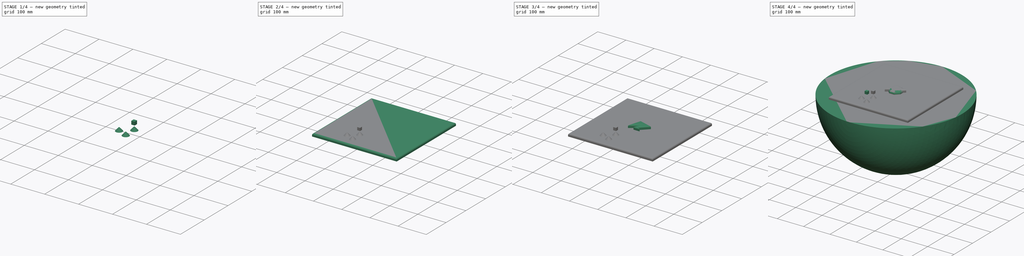
[diagram: build sequence overview — one tinted view per stage of 4, left to right]
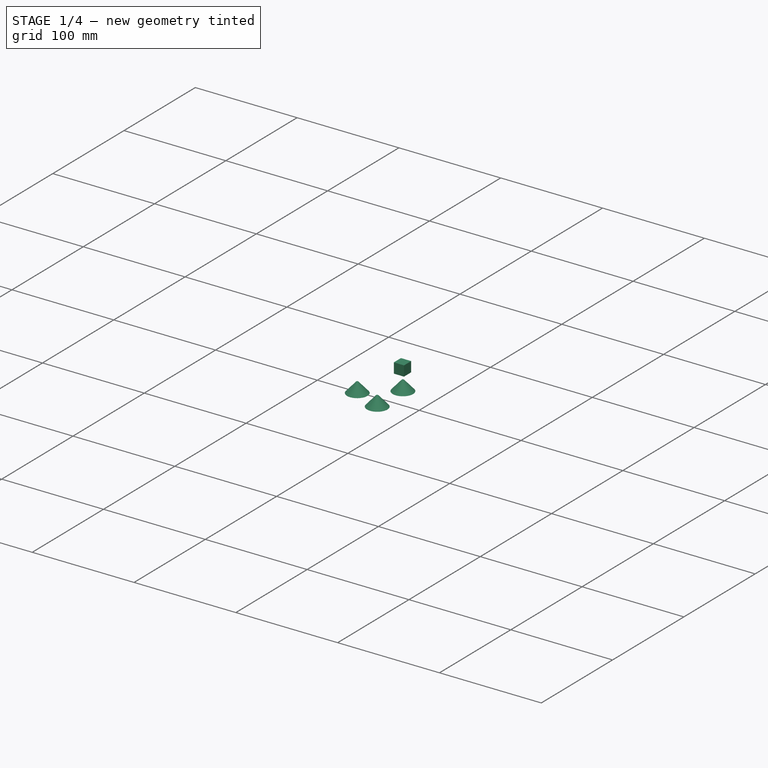
[diagram: stage 1 of 4 — iso view after this stage's code; geometry added in this stage tinted green]
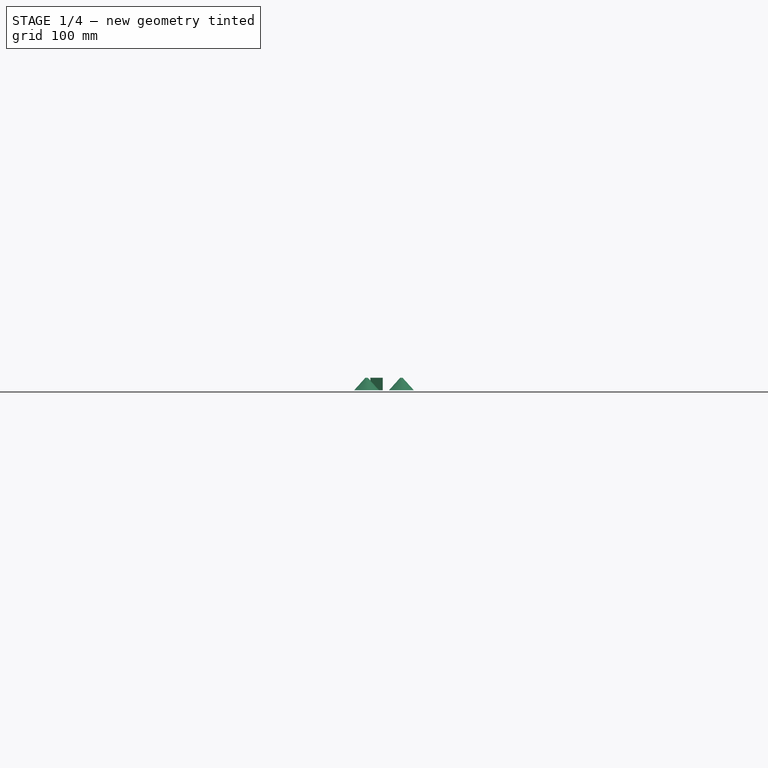
[diagram: stage 1 of 4 — front view after this stage's code; geometry added in this stage tinted green]
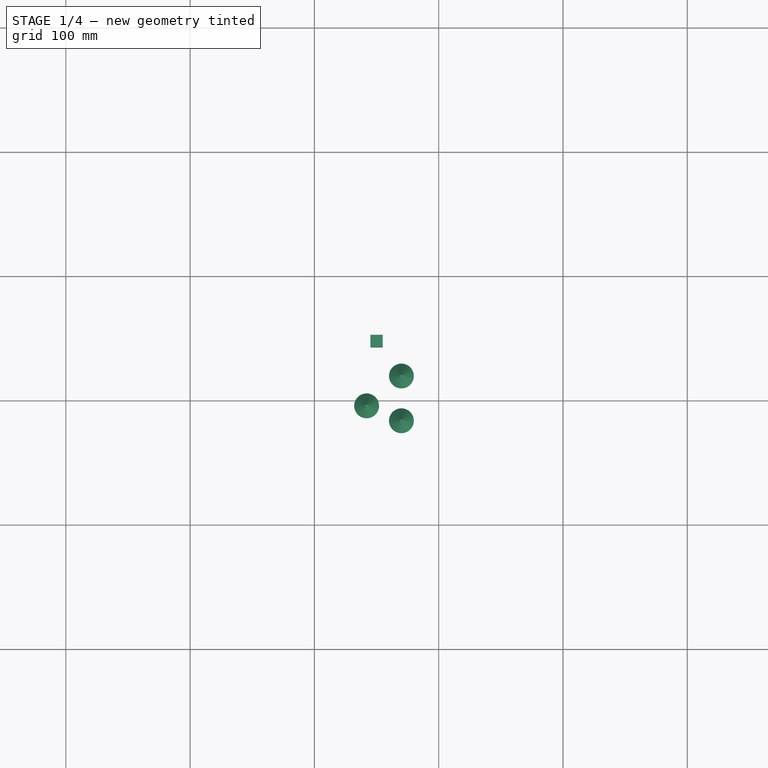
[diagram: stage 1 of 4 — top view after this stage's code; geometry added in this stage tinted green]
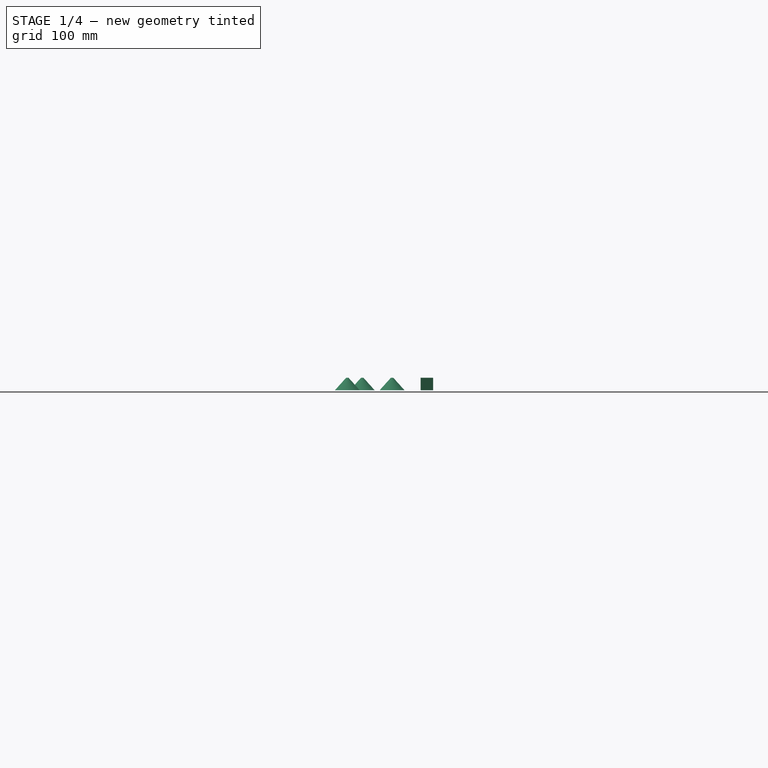
[diagram: stage 1 of 4 — right view after this stage's code; geometry added in this stage tinted green]
FCSTD DOCUMENT  (FreeCAD 0.19R)
Label: assembly__export
License: CreativeCommons Attribution-ShareAlike
LicenseURL: http://creativecommons.org/licenses/by-sa/4.0/
objects: App::LinkElement×8, PartDesign::Body×5, App::Part×5, App::Link×3, Sketcher::SketchObject×3, PartDesign::Pad×3, PartDesign::Fillet×3, Part::Cone×3, Part::Box×2, PartDesign::FeatureBase×2, Part::Feature×2, Part::Sphere×1, Part::FeaturePython×1
note: 27 computed .brp shape members not serialized (recipe doc carries the construction recipe); baked Part::Feature solids carry a one-line shape summary decoded from their .brp
EXTERNAL_REF file=box_panel.FCStd obj=Part
EXTERNAL_REF file=front_panel.FCStd obj=Part
EXTERNAL_REF file=base_dimensions.FCStd obj=Sketch004
EXTERNAL_REF file=lamp.FCStd obj=Part
EXTERNAL_REF file=base_dimensions.FCStd obj=Sketch009

FEATURE [Part::Sphere] Sphere  label="world_sphere"
  Angle1 = -90
  Angle2 = 90
  Angle3 = 180
  AttacherType = Attacher::AttachEngine3D
  Placement = pos=(0,0,-10) rot=(-1,0,0;1.5708rad)
  Radius = 250
FEATURE [Sketcher::SketchObject] Sketch001  label="octagon_sketch"
  MapMode = 5
  Support = -> [XY_Plane003]
  sketch-geometry (9):
    g0: LineSegment StartX=23.097 StartY=-9.56709 StartZ=0 EndX=23.097 EndY=9.56709 EndZ=0
    g1: LineSegment StartX=23.097 StartY=9.56709 StartZ=0 EndX=9.56709 EndY=23.097 EndZ=0
    g2: LineSegment StartX=9.56709 StartY=23.097 StartZ=0 EndX=-9.56709 EndY=23.097 EndZ=0
    g3: LineSegment StartX=-9.56709 StartY=23.097 StartZ=0 EndX=-23.097 EndY=9.56709 EndZ=0
    g4: LineSegment StartX=-23.097 StartY=9.56709 StartZ=0 EndX=-23.097 EndY=-9.56709 EndZ=0
    g5: LineSegment StartX=-23.097 StartY=-9.56709 StartZ=0 EndX=-9.56709 EndY=-23.097 EndZ=0
    g6: LineSegment StartX=-9.56709 StartY=-23.097 StartZ=0 EndX=9.56709 EndY=-23.097 EndZ=0
    g7: LineSegment StartX=9.56709 StartY=-23.097 StartZ=0 EndX=23.097 EndY=-9.56709 EndZ=0
    g8: Circle [constr] CenterX=0 CenterY=0 CenterZ=0 NormalX=0 NormalY=0 NormalZ=1 AngleXU=0 Radius=25
  constraints (20):
    c: Coincident(g0,g1)
    c: Coincident(g1,g2)
    c: Coincident(g2,g3)
    c: Coincident(g3,g4)
    c: Coincident(g4,g5)
    c: Coincident(g5,g6)
    c: Coincident(g6,g7)
    c: Coincident(g7,g0)
    c: Equal(g0, g1-g7) x7
    c: PointOnObject(g0,g8)
    c: PointOnObject(g1,g8)
    c: PointOnObject(g2,g8)
    c: PointOnObject(g3,g8)
    c: PointOnObject(g4,g8)
    c: PointOnObject(g5,g8)
    c: PointOnObject(g6,g8)
    c: PointOnObject(g7,g8)
    c: Coincident(g8,g-1)
    c: Horizontal(g6)
    c: Radius(g8) = 25
FEATURE [PartDesign::Pad] Pad001  label="octagon_Pad"
  Length = 10
  Length2 = 100
  Profile = -> Sketch001
  Type = 0
FEATURE [PartDesign::Fillet] Fillet  label="octagon_Fillet"
  Base = -> Pad001 [Face10]
  BaseFeature = -> Pad001
  Radius = 9
FEATURE [PartDesign::Body] Body001  label="octagon_body"
  Group = -> [Sketch001,Pad001,Fillet]
  Origin = -> Origin003
  Placement = pos=(45,-60,0) rot=(0,0,1;0rad)
  Tip = -> Fillet
FEATURE [PartDesign::Fillet] Fillet001
  Base = -> Pad [Face5]
  BaseFeature = -> Pad
  Radius = 5
FEATURE [PartDesign::Body] Body  label="floor_body"
  Group = -> [Sketch,Pad,Fillet001]
  Origin = -> Origin001
  Tip = -> Fillet001
FEATURE [Part::Cone] Cone  label="cone_blue"
  Angle = 360
  AttacherType = Attacher::AttachEngine3D
  Height = 10
  Placement = pos=(-30,-80,0) rot=(0,0,1;0rad)
  Radius1 = 10
  Radius2 = 1
FEATURE [Part::Box] Box001  label="cube_colorfull"
  AttacherType = Attacher::AttachEngine3D
  Height = 10
  Length = 10
  Placement = pos=(-55,-57,0) rot=(0,0,1;0rad)
  Width = 10
FEATURE [PartDesign::Body] Body004  label="floor_body_clone_Body"
  BaseFeature = -> Body
  Group = -> [Clone001]
  Origin = -> Origin007
  Placement = pos=(0,0,-9) rot=(0,0,1;0.785398rad)
  Tip = -> Clone001
FEATURE [Part::Cone] Cone001  label="cone_green"
  Angle = 360
  AttacherType = Attacher::AttachEngine3D
  Height = 10
  Placement = pos=(-30,-116,0) rot=(0,0,1;0rad)
  Radius1 = 10
  Radius2 = 1
FEATURE [Part::Cone] Cone002  label="cone_orange"
  Angle = 360
  AttacherType = Attacher::AttachEngine3D
  Height = 10
  Placement = pos=(-58,-104,0) rot=(0,0,1;0rad)
  Radius1 = 10
  Radius2 = 1
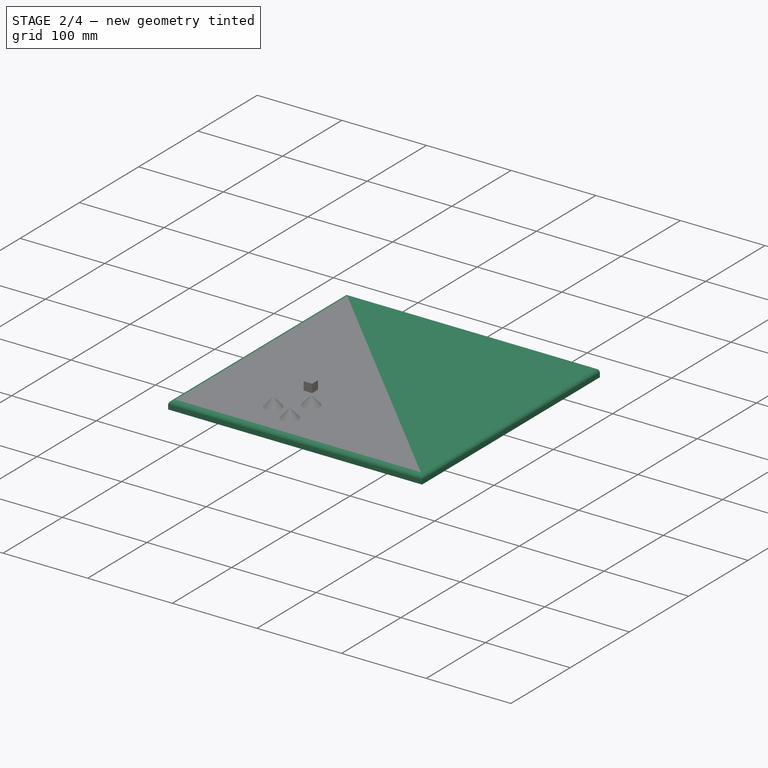
[diagram: stage 2 of 4 — iso view after this stage's code; geometry added in this stage tinted green]
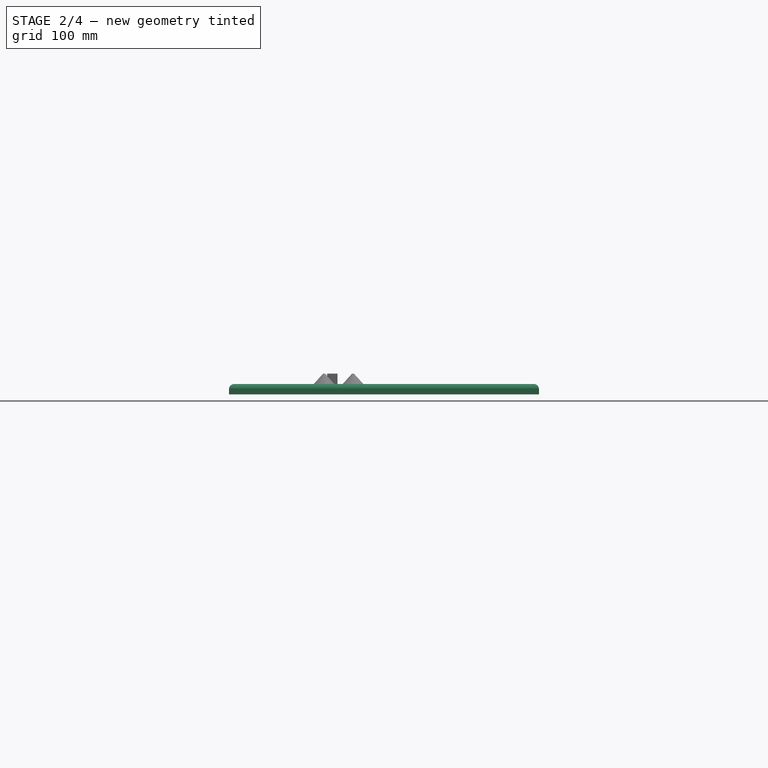
[diagram: stage 2 of 4 — front view after this stage's code; geometry added in this stage tinted green]
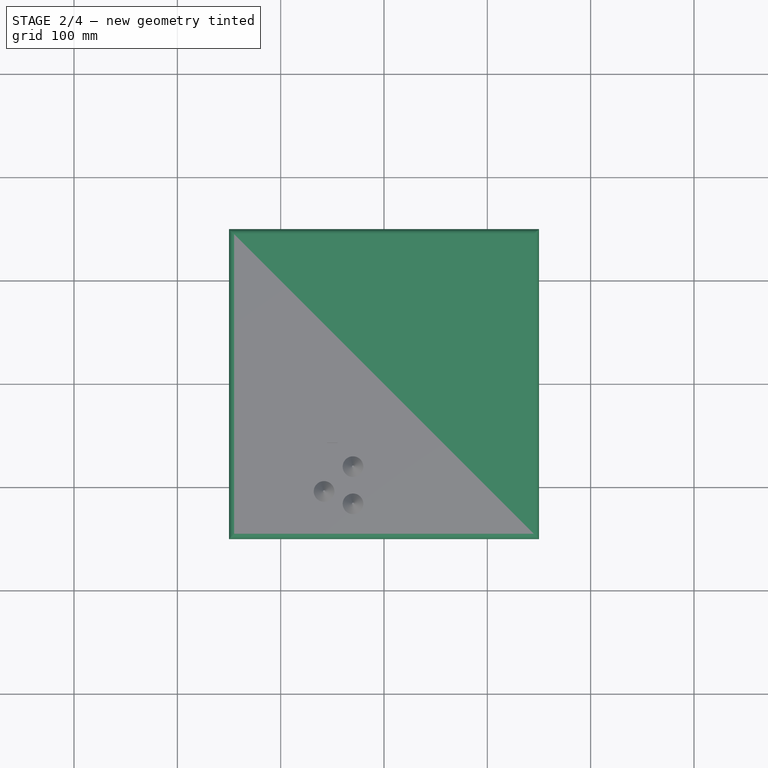
[diagram: stage 2 of 4 — top view after this stage's code; geometry added in this stage tinted green]
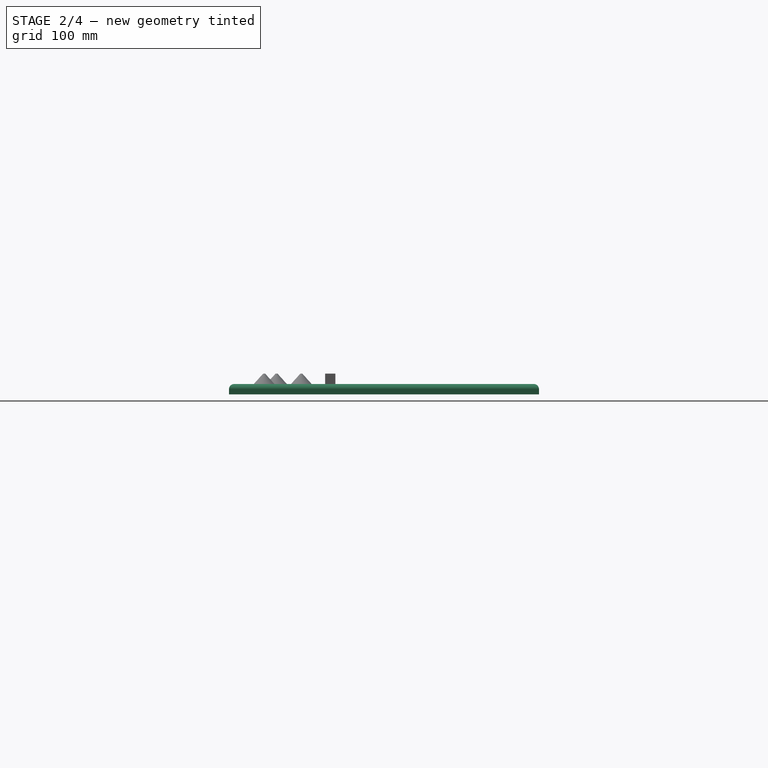
[diagram: stage 2 of 4 — right view after this stage's code; geometry added in this stage tinted green]
FEATURE [PartDesign::Body] Body003  label="cube_part_clone_Body"
  BaseFeature = -> Box001
  Group = -> [Clone]
  Origin = -> Origin006
  Placement = pos=(-35,-23,0) rot=(0,1,0;0.523599rad)
  Tip = -> Clone
FEATURE [PartDesign::FeatureBase] Clone001  label="floor_body_clone"
  BaseFeature = -> Body
FEATURE [App::Part] Part004  label="cones_group"
  Group = -> [Cone001,Cone002,Cone]
  Origin = -> Origin009
FEATURE [App::Part] Part003  label="deco_Part"
  Group = -> [Box001,Part004]
  Origin = -> Origin008
FEATURE [Part::Feature] Body001__sc_export  label="octagon_body__sc_export"
  Placement = pos=(45,-60,0) rot=(0,0,1;0rad)
  shape: bbox 46.19 x 46.19 x 10 mm, 18 faces (baked)
FEATURE [App::Part] Part001  label="octagon_part"
  Group = -> [Body001,Body001__sc_export]
  Origin = -> Origin002
FEATURE [Part::Feature] Body__sc_export  label="floor_body__sc_export"
  shape: bbox 300 x 300 x 10 mm, 10 faces (baked)
FEATURE [App::Part] Part002  label="floor_part"
  Group = -> [Body,Body__sc_export]
  Origin = -> Origin004
FEATURE [App::LinkElement] Array_i0
  LinkedObject = -> Link002
FEATURE [App::LinkElement] Array_i1
  LinkPlacement = pos=(-19.0526,0,11) rot=(0,1,0;1.0472rad)
  LinkedObject = -> Link002
  Placement = pos=(-19.0526,0,11) rot=(0,1,0;1.0472rad)
FEATURE [App::LinkElement] Array_i2
  LinkPlacement = pos=(-19.0526,0,33) rot=(0,1,0;2.0944rad)
  LinkedObject = -> Link002
  Placement = pos=(-19.0526,0,33) rot=(0,1,0;2.0944rad)
FEATURE [App::LinkElement] Array_i3
  LinkPlacement = pos=(-2.7e-15,0,44) rot=(0,1,0;3.14159rad)
  LinkedObject = -> Link002
  Placement = pos=(-2.7e-15,0,44) rot=(0,1,0;3.14159rad)
FEATURE [App::LinkElement] Array_i4
  LinkPlacement = pos=(19.0526,0,33) rot=(0,1,0;4.18879rad)
  LinkedObject = -> Link002
  Placement = pos=(19.0526,0,33) rot=(0,1,0;4.18879rad)
FEATURE [App::LinkElement] Array_i5
  LinkPlacement = pos=(19.0526,0,11) rot=(0,1,0;5.23599rad)
  LinkedObject = -> Link002
  Placement = pos=(19.0526,0,11) rot=(0,1,0;5.23599rad)
FEATURE [Part::FeaturePython] Array  label="lamp_Array"  # Draft array (typed FeaturePython)
  Angle = 360
  ArrayType = 1
  Axis = (0,1,0)
  Base = -> Link002
  Center = (0,0,22)
  Count = 6
  ElementList = -> [Array_i0,Array_i1,Array_i2,Array_i3,Array_i4,Array_i5]
  ExpandArray = true
  Fuse = false
  IntervalAxis = (0,0,0)
  IntervalX = (1,0,0)
  IntervalY = (0,1,0)
  IntervalZ = (0,0,1)
  NumberPolar = 6
  NumberX = 2
  NumberY = 2
  NumberZ = 1
  Placement = pos=(-40,0,18) rot=(0,0,1;0rad)
  expr: .Placement.Base.x = <<base_dimensions>>#<<lamp_positions_sketch>>.Constraints.center_x
  expr: .Placement.Base.z = <<base_dimensions>>#<<lamp_positions_sketch>>.Constraints.center_z - <<base_dimensions>>#<<lamp_positions_sketch>>.Constraints.radius
  expr: .Center.z = <<base_dimensions>>#<<lamp_positions_sketch>>.Constraints.radius
FEATURE [App::Part] Part  label="my_final_assembly"
  Group = -> [Link_i0,Link_i1,Link,Link001,Link002,Array]
  Origin = -> Origin

RESOLVED EXTERNAL PARTS (link-assembly join: the EXTERNAL_REF files above that resolve inside this repo's crawl, each included once):
---- part base_dimensions.FCStd = doc fcstd_b8fe31d7e185 ----
FCSTD DOCUMENT  (FreeCAD 0.19R18353 (Git))
Label: base_dimensions
License: CreativeCommons Attribution-ShareAlike
LicenseURL: http://creativecommons.org/licenses/by-sa/4.0/
objects: Sketcher::SketchObject×10, PartDesign::Body×3, App::Link×2, App::Part×2, Spreadsheet::Sheet×1
note: 13 computed .brp shape members not serialized (recipe doc carries the construction recipe); baked Part::Feature solids carry a one-line shape summary decoded from their .brp

FEATURE [Sketcher::SketchObject] Sketch  label="front_outline_sketch"
  MapMode = 5
  Placement = pos=(0,0,0) rot=(1,0,0;1.5708rad)
  Support = -> [XZ_Plane001]
  expr: .Constraints.height = .Constraints.side_height + 30mm
  sketch-geometry (8):
    g0: LineSegment [constr] StartX=-80 StartY=120 StartZ=0 EndX=80 EndY=120 EndZ=0
    g1: LineSegment StartX=80 StartY=120 StartZ=0 EndX=80 EndY=0 EndZ=0
    g2: LineSegment StartX=80 StartY=0 StartZ=0 EndX=-80 EndY=0 EndZ=0
    g3: LineSegment StartX=-80 StartY=0 StartZ=0 EndX=-80 EndY=120 EndZ=0
    g4: ArcOfCircle CenterX=-3e-14 CenterY=-13.3333 CenterZ=0 NormalX=0 NormalY=0 NormalZ=1 AngleXU=0 Radius=163.333 StartAngle=1.1172 EndAngle=2.02439
    g5: LineSegment [constr] StartX=0 StartY=150 StartZ=0 EndX=0 EndY=0 EndZ=0
    g6: ArcOfCircle CenterX=-65 CenterY=120 CenterZ=0 NormalX=0 NormalY=0 NormalZ=1 AngleXU=0 Radius=15 StartAngle=2.02439 EndAngle=3.14159
    g7: ArcOfCircle CenterX=65 CenterY=120 CenterZ=0 NormalX=0 NormalY=0 NormalZ=1 AngleXU=0 Radius=15 StartAngle=9e-16 EndAngle=1.1172
  constraints (20):
    c: Coincident(g0,g1)
    c: Coincident(g1,g2)
    c: Coincident(g2,g3)
    c: Coincident(g3,g0)
    c: Horizontal(g0)
    c: Horizontal(g2)
    c: Vertical(g3)
    c: Symmetric(g2,g2,g-1)
    c: DistanceX(g2,g2) = 160
    c: DistanceY(g3,g3) = 120  'side_height'
    c: Coincident(g5,g-1)
    c: Perpendicular(g5,g4) = 4.71239
    c: Equal(g7,g6)
    c: Radius(g6) = 15
    c: Tangent(g6,g3) = 1.5708
    c: Tangent(g6,g4) = -1.5708
    c: Tangent(g7,g4) = -1.5708
    c: DistanceY(g5,g5) = 150  'height'
    c: PointOnObject(g5,g-2)
    c: Tangent(g7,g1) = 1.5708
FEATURE [Sketcher::SketchObject] Sketch001  label="front_y"
  MapMode = 5
  Support = -> [XY_Plane001]
  sketch-geometry (3):
    g0: LineSegment StartX=0 StartY=-5 StartZ=0 EndX=0 EndY=0 EndZ=0
    g1: LineSegment StartX=0 StartY=0 StartZ=0 EndX=0 EndY=10 EndZ=0
    g2: LineSegment StartX=0 StartY=10 StartZ=0 EndX=0 EndY=110 EndZ=0
  constraints (9):
    c: Coincident(g0,g1)
    c: Coincident(g1,g2)
    c: Vertical(g2)
    c: DistanceY(g0,g0) = 5  'deco_thickness'
    c: Coincident(g0,g-1)
    c: Vertical(g0)
    c: Vertical(g1)
    c: DistanceY(g1,g1) = 10  'thickness'
    c: DistanceY(g2) = 110  'case_depth'
FEATURE [Sketcher::SketchObject] Sketch002  label="box_cutout_sketch"
  MapMode = 5
  Placement = pos=(0,0,0) rot=(1,0,0;1.5708rad)
  Support = -> [XZ_Plane003]
  sketch-geometry (7):
    g0: LineSegment StartX=-15 StartY=9e-16 StartZ=0 EndX=-7.5 EndY=-12.9904 EndZ=0
    g1: LineSegment StartX=-7.5 StartY=-12.9904 StartZ=0 EndX=7.5 EndY=-12.9904 EndZ=0
    g2: LineSegment StartX=7.5 StartY=-12.9904 StartZ=0 EndX=15 EndY=1.8e-15 EndZ=0
    g3: LineSegment StartX=15 StartY=1.8e-15 StartZ=0 EndX=7.5 EndY=12.9904 EndZ=0
    g4: LineSegment StartX=7.5 StartY=12.9904 StartZ=0 EndX=-7.5 EndY=12.9904 EndZ=0
    g5: LineSegment StartX=-7.5 StartY=12.9904 StartZ=0 EndX=-15 EndY=1.8e-15 EndZ=0
    g6: Circle [constr] CenterX=0 CenterY=0 CenterZ=0 NormalX=0 NormalY=0 NormalZ=1 AngleXU=0 Radius=15
  constraints (16):
    c: Coincident(g0,g1)
    c: Coincident(g1,g2)
    c: Coincident(g2,g3)
    c: Coincident(g3,g4)
    c: Coincident(g4,g5)
    c: Coincident(g5,g0)
    c: Equal(g0, g1-g5) x5
    c: PointOnObject(g0,g6)
    c: PointOnObject(g1,g6)
    c: PointOnObject(g2,g6)
    c: PointOnObject(g3,g6)
    c: PointOnObject(g4,g6)
    c: PointOnObject(g5,g6)
    c: Horizontal(g1)
    c: DistanceX(g0,g2) = 30  'width'
    c: Coincident(g6,g-1)
FEATURE [Sketcher::SketchObject] Sketch003  label="box_outline_sketch"
  MapMode = 5
  Placement = pos=(0,0,0) rot=(1,0,0;1.5708rad)
  Support = -> [XZ_Plane003]
  sketch-geometry (8):
    g0: LineSegment [constr] StartX=-15 StartY=-3.6e-15 StartZ=0 EndX=-7.5 EndY=-12.9904 EndZ=0
    g1: LineSegment [constr] StartX=-7.5 StartY=-12.9904 StartZ=0 EndX=7.5 EndY=-12.9904 EndZ=0
    g2: LineSegment [constr] StartX=7.5 StartY=-12.9904 StartZ=0 EndX=15 EndY=-1.07e-14 EndZ=0
    g3: LineSegment [constr] StartX=15 StartY=-1.07e-14 StartZ=0 EndX=7.5 EndY=12.9904 EndZ=0
    g4: LineSegment [constr] StartX=7.5 StartY=12.9904 StartZ=0 EndX=-7.5 EndY=12.9904 EndZ=0
    g5: LineSegment [constr] StartX=-7.5 StartY=12.9904 StartZ=0 EndX=-15 EndY=-3.6e-15 EndZ=0
    g6: Circle [constr] CenterX=0 CenterY=0 CenterZ=0 NormalX=0 NormalY=0 NormalZ=1 AngleXU=0 Radius=15
    g7: Circle CenterX=0 CenterY=0 CenterZ=0 NormalX=0 NormalY=0 NormalZ=1 AngleXU=0 Radius=25
  constraints (18):
    c: Coincident(g0,g1)
    c: Coincident(g1,g2)
    c: Coincident(g2,g3)
    c: Coincident(g3,g4)
    c: Coincident(g4,g5)
    c: Coincident(g5,g0)
    c: Equal(g0, g1-g5) x5
    c: PointOnObject(g0,g6)
    c: PointOnObject(g1,g6)
    c: PointOnObject(g2,g6)
    c: PointOnObject(g3,g6)
    c: PointOnObject(g4,g6)
    c: PointOnObject(g5,g6)
    c: Horizontal(g1)
    c: DistanceX(g0,g2) = 30
    c: Coincident(g7,g6)
    c: Diameter(g7) = 50  'width'
    c: Coincident(g7,g-1)
FEATURE [Sketcher::SketchObject] Sketch004  label="box_positions"
  MapMode = 5
  Placement = pos=(0,0,0) rot=(1,0,0;1.5708rad)
  Support = -> [XZ_Plane001]
  sketch-geometry (2):
    g0: GeomPoint X=-40 Y=105 Z=0
    g1: GeomPoint X=30 Y=60 Z=0
  constraints (4):
    c: DistanceX(g0) = -40  'p1_x'
    c: DistanceY(g0) = 105  'p1_z'
    c: DistanceX(g1) = 30  'p2_x'
    c: DistanceY(g1) = 60  'p2_z'
FEATURE [PartDesign::Body] Body  label="base"
  Group = -> [Sketch,Sketch001,Sketch004]
  Origin = -> Origin001
FEATURE [PartDesign::Body] Body001  label="box"
  Group = -> [Sketch003,Sketch002]
  Origin = -> Origin003
FEATURE [App::Link] Link  label="box001"
  LinkPlacement = pos=(-40,0,105) rot=(0,0,1;0rad)
  LinkedObject = -> Body001
  Placement = pos=(-40,0,105) rot=(0,0,1;0rad)
  expr: .Placement.Base.x = <<base_dimensions>>#<<box_positions>>.Constraints.p1_x
  expr: .Placement.Base.y = 0
  expr: .Placement.Base.z = <<base_dimensions>>#<<box_positions>>.Constraints.p1_z
FEATURE [App::Link] Link001  label="box002"
  LinkPlacement = pos=(30,0,60) rot=(0,0,1;0rad)
  LinkedObject = -> Body001
  Placement = pos=(30,0,60) rot=(0,0,1;0rad)
  expr: .Placement.Base.x = <<base_dimensions>>#<<box_positions>>.Constraints.p2_x
  expr: .Placement.Base.y = 0
  expr: .Placement.Base.z = <<base_dimensions>>#<<box_positions>>.Constraints.p2_z
FEATURE [App::Part] Part001  label="preview"
  Group = -> [Link,Link001]
  Origin = -> Origin002
FEATURE [Sketcher::SketchObject] Sketch005  label="lamp_base_sketch"
  MapMode = 5
  Placement = pos=(0,0,0) rot=(1,0,0;1.5708rad)
  Support = -> [XZ_Plane004]
  sketch-geometry (1):
    g0: Circle CenterX=0 CenterY=0 CenterZ=0 NormalX=0 NormalY=0 NormalZ=1 AngleXU=0 Radius=5
  constraints (2):
    c: Coincident(g0,g-1)
    c: Radius(g0) = 5  'radius'
FEATURE [Sketcher::SketchObject] Sketch006  label="lamp_outline_sketch"
  MapMode = 5
  Placement = pos=(0,0,0) rot=(1,0,0;1.5708rad)
  Support = -> [XZ_Plane004]
  expr: .Constraints.radius = <<lamp_base_sketch>>.Constraints.radius + <<data>>.lamp_fillet_radius + 0.5mm
  sketch-geometry (1):
    g0: Circle CenterX=0 CenterY=0 CenterZ=0 NormalX=0 NormalY=0 NormalZ=1 AngleXU=0 Radius=10.5
  constraints (2):
    c: Coincident(g0,g-1)
    c: Radius(g0) = 10.5  'radius'
FEATURE [Spreadsheet::Sheet] Spreadsheet  label="data"
  cells = A1=lamp fillet radius; B1(lamp_fillet_radius)==5mm
FEATURE [Sketcher::SketchObject] Sketch007  label="lamp_cutout_sketch"
  MapMode = 5
  Placement = pos=(0,0,0) rot=(1,0,0;1.5708rad)
  Support = -> [XZ_Plane004]
  expr: .Constraints.radius = <<lamp_base_sketch>>.Constraints.radius + 2mm
  sketch-geometry (1):
    g0: Circle CenterX=0 CenterY=0 CenterZ=0 NormalX=0 NormalY=0 NormalZ=1 AngleXU=0 Radius=7
  constraints (2):
    c: Coincident(g0,g-1)
    c: Radius(g0) = 7  'radius'
FEATURE [Sketcher::SketchObject] Sketch008  label="lamp_cutout_in_sketch"
  MapMode = 5
  Placement = pos=(0,0,0) rot=(1,0,0;1.5708rad)
  Support = -> [XZ_Plane004]
  expr: .Constraints.radius = <<lamp_base_sketch>>.Constraints.radius + 0.050000000000000003mm
  sketch-geometry (1):
    g0: Circle CenterX=0 CenterY=0 CenterZ=0 NormalX=0 NormalY=0 NormalZ=1 AngleXU=0 Radius=5.05
  constraints (2):
    c: Coincident(g0,g-1)
    c: Radius(g0) = 5.05  'radius'
FEATURE [Sketcher::SketchObject] Sketch009  label="lamp_positions_sketch"
  MapMode = 5
  Placement = pos=(0,0,0) rot=(1,0,0;1.5708rad)
  Support = -> [XZ_Plane004]
  sketch-geometry (7):
    g0: LineSegment StartX=-40 StartY=18 StartZ=0 EndX=-20.9474 EndY=29 EndZ=0
    g1: LineSegment StartX=-20.9474 StartY=29 StartZ=0 EndX=-20.9474 EndY=51 EndZ=0
    g2: LineSegment StartX=-20.9474 StartY=51 StartZ=0 EndX=-40 EndY=62 EndZ=0
    g3: LineSegment StartX=-40 StartY=62 StartZ=0 EndX=-59.0526 EndY=51 EndZ=0
    g4: LineSegment StartX=-59.0526 StartY=51 StartZ=0 EndX=-59.0526 EndY=29 EndZ=0
    g5: LineSegment StartX=-59.0526 StartY=29 StartZ=0 EndX=-40 EndY=18 EndZ=0
    g6: Circle [constr] CenterX=-40 CenterY=40 CenterZ=0 NormalX=0 NormalY=0 NormalZ=1 AngleXU=0 Radius=22
  constraints (17):
    c: Coincident(g0,g1)
    c: Coincident(g1,g2)
    c: Coincident(g2,g3)
    c: Coincident(g3,g4)
    c: Coincident(g4,g5)
    c: Coincident(g5,g0)
    c: Equal(g0, g1-g5) x5
    c: PointOnObject(g0,g6)
    c: PointOnObject(g1,g6)
    c: PointOnObject(g2,g6)
    c: PointOnObject(g3,g6)
    c: PointOnObject(g4,g6)
    c: PointOnObject(g5,g6)
    c: DistanceX(g6) = -40  'center_x'
    c: DistanceY(g6) = 40  'center_z'
    c: Vertical(g1)
    c: Radius(g6) = 22  'radius'
FEATURE [PartDesign::Body] Body002  label="lamp"
  Group = -> [Sketch005,Sketch006,Sketch007,Sketch008,Sketch009]
  Origin = -> Origin004
FEATURE [App::Part] Part  label="dimensions"
  Group = -> [Body,Body001,Body002,Spreadsheet]
  Origin = -> Origin
---- part box_panel.FCStd = doc fcstd_2ae69db5c626 ----
FCSTD DOCUMENT  (FreeCAD 0.19R)
Label: box_panel
License: CreativeCommons Attribution-ShareAlike
LicenseURL: http://creativecommons.org/licenses/by-sa/4.0/
objects: PartDesign::SubShapeBinder×2, PartDesign::Pad×1, PartDesign::Pocket×1, PartDesign::Fillet×1, PartDesign::Body×1, Part::Feature×1, App::Part×1
note: 9 computed .brp shape members not serialized (recipe doc carries the construction recipe); baked Part::Feature solids carry a one-line shape summary decoded from their .brp
EXTERNAL_REF file=base_dimensions.FCStd obj=Part
EXTERNAL_REF file=base_dimensions.FCStd obj=Sketch001

FEATURE [PartDesign::SubShapeBinder] Binder  label="Binder_box_outline"
  BindMode = 0
  ClaimChildren = false
  Context = -> Part [Body.Binder.]
  Fuse = false
  MakeFace = true
  PartialLoad = false
  Relative = true
  Support = -> [<external base_dimensions.FCStd>#Part[Body001.Sketch003.]]
  _Version = 1
FEATURE [PartDesign::SubShapeBinder] Binder001  label="Binder_box_cutout"
  BindMode = 0
  ClaimChildren = false
  Context = -> Part [Body.Binder001.]
  Fuse = false
  MakeFace = true
  PartialLoad = false
  Relative = true
  Support = -> [<external base_dimensions.FCStd>#Part[Body001.Sketch002.]]
  _Version = 1
FEATURE [PartDesign::Pad] Pad
  Length = 5
  Length2 = 100
  Profile = -> Binder [Face1]
  Reversed = true
  Type = 0
  expr: Length = <<base_dimensions>>#<<front_y>>.Constraints.deco_thickness
FEATURE [PartDesign::Pocket] Pocket
  BaseFeature = -> Pad
  Length = 5
  Length2 = 100
  Profile = -> Binder001 [Face1]
  Type = 1
FEATURE [PartDesign::Fillet] Fillet
  Base = -> Pocket [Face3]
  BaseFeature = -> Pocket
  Radius = 4
FEATURE [PartDesign::Body] Body  label="box_panel_body"
  Group = -> [Binder,Binder001,Pad,Pocket,Fillet]
  Origin = -> Origin001
  Tip = -> Fillet
FEATURE [Part::Feature] Body__sc_export  label="box_panel_body__sc_export"
  shape: bbox 54.12 x 5 x 54.12 mm, 16 faces (baked)
FEATURE [App::Part] Part  label="box_panel_part"
  Group = -> [Body,Body__sc_export]
  Origin = -> Origin
---- part front_panel.FCStd = doc fcstd_e824bf6ebf72 ----
FCSTD DOCUMENT  (FreeCAD 0.19R)
Label: front_panel
License: CreativeCommons Attribution-ShareAlike
LicenseURL: http://creativecommons.org/licenses/by-sa/4.0/
objects: PartDesign::SubShapeBinder×3, PartDesign::Pocket×2, PartDesign::Pad×1, PartDesign::Fillet×1, PartDesign::Body×1, Part::Feature×1, App::Part×1
note: 12 computed .brp shape members not serialized (recipe doc carries the construction recipe); baked Part::Feature solids carry a one-line shape summary decoded from their .brp
EXTERNAL_REF file=base_dimensions.FCStd obj=Part
EXTERNAL_REF file=base_dimensions.FCStd obj=Sketch001
EXTERNAL_REF file=base_dimensions.FCStd obj=Sketch004

FEATURE [PartDesign::SubShapeBinder] Binder
  BindMode = 0
  ClaimChildren = false
  Context = -> Part [Body.Binder.]
  Fuse = false
  MakeFace = true
  PartialLoad = false
  Relative = true
  Support = -> [<external base_dimensions.FCStd>#Part[Body.Sketch.]]
  _Version = 1
FEATURE [PartDesign::Pad] Pad
  Length = 10
  Length2 = 100
  Profile = -> Binder [Face1]
  Type = 0
  expr: Length = <<base_dimensions>>#<<front_y>>.Constraints.thickness
FEATURE [PartDesign::SubShapeBinder] Binder001
  BindMode = 0
  ClaimChildren = false
  Context = -> Part [Body.Binder001.]
  Fuse = false
  MakeFace = true
  PartialLoad = false
  Relative = true
  Support = -> [<external base_dimensions.FCStd>#Part[Body001.Sketch002.]]
  _Version = 1
  expr: .Placement.Base.x = <<base_dimensions>>#<<box_positions>>.Constraints.p1_x
  expr: .Placement.Base.z = <<base_dimensions>>#<<box_positions>>.Constraints.p1_z
FEATURE [PartDesign::Pocket] Pocket
  BaseFeature = -> Pad
  Length = 5
  Length2 = 100
  Profile = -> Binder001 [Face1]
  Reversed = true
  Type = 1
FEATURE [PartDesign::SubShapeBinder] Binder002
  BindMode = 0
  ClaimChildren = false
  Context = -> Part [Body.Binder002.]
  Fuse = false
  MakeFace = true
  PartialLoad = false
  Relative = true
  Support = -> [<external base_dimensions.FCStd>#Part[Body001.Sketch002.]]
  _Version = 1
  expr: .Placement.Base.z = <<base_dimensions>>#<<box_positions>>.Constraints.p2_z
  expr: .Placement.Base.x = <<base_dimensions>>#<<box_positions>>.Constraints.p2_x
FEATURE [PartDesign::Pocket] Pocket001
  BaseFeature = -> Pocket
  Length = 5
  Length2 = 100
  Profile = -> Binder002 [Face1]
  Reversed = true
  Type = 1
FEATURE [PartDesign::Fillet] Fillet
  Base = -> Pocket001 [Edge11,Edge13,Edge12,Edge6,Edge3]
  BaseFeature = -> Pocket001
  Radius = 5
FEATURE [PartDesign::Body] Body  label="front_panel_body"
  Group = -> [Binder,Pad,Binder001,Pocket,Binder002,Pocket001,Fillet]
  Origin = -> Origin001
  Tip = -> Fillet
FEATURE [Part::Feature] Body__sc_export  label="front_panel_body__sc_export"
  shape: bbox 162.5 x 10 x 153.8 mm, 25 faces (baked)
FEATURE [App::Part] Part  label="front_panel_part"
  Group = -> [Body,Body__sc_export]
  Origin = -> Origin
---- part lamp.FCStd = doc fcstd_b2dc8103cb80 ----
FCSTD DOCUMENT  (FreeCAD 0.19R)
Label: lamp
License: CreativeCommons Attribution-ShareAlike
LicenseURL: http://creativecommons.org/licenses/by-sa/4.0/
objects: PartDesign::SubShapeBinder×4, PartDesign::Pad×3, PartDesign::Fillet×2, PartDesign::Body×2, Part::Feature×2, PartDesign::Pocket×1, PartDesign::AdditiveSphere×1, App::Part×1
note: 20 computed .brp shape members not serialized (recipe doc carries the construction recipe); baked Part::Feature solids carry a one-line shape summary decoded from their .brp
EXTERNAL_REF file=base_dimensions.FCStd obj=Part
EXTERNAL_REF file=base_dimensions.FCStd obj=Spreadsheet
EXTERNAL_REF file=base_dimensions.FCStd obj=Sketch001

FEATURE [PartDesign::SubShapeBinder] Binder  label="Binder_lamp_outline_sketch"
  BindMode = 0
  ClaimChildren = false
  Context = -> Part [Body.Binder.]
  Fuse = false
  MakeFace = true
  PartialLoad = false
  Relative = true
  Support = -> [<external base_dimensions.FCStd>#Part[Body002.Sketch006.]]
  _Version = 1
FEATURE [PartDesign::Pad] Pad
  Length = 5.5
  Length2 = 100
  Profile = -> Binder [Face1]
  Reversed = true
  Type = 0
  expr: Length = <<base_dimensions>>#<<data>>.lamp_fillet_radius + 0.5mm
FEATURE [PartDesign::SubShapeBinder] Binder003  label="Binder_lamp_base_sketch001"
  BindMode = 0
  ClaimChildren = false
  Context = -> Part [Body001.Binder003.]
  Fuse = false
  MakeFace = true
  PartialLoad = false
  Placement = pos=(0,-5,0) rot=(0,0,1;0rad)
  Relative = true
  Support = -> [<external base_dimensions.FCStd>#Part[Body002.Sketch005.]]
  _Version = 1
  expr: .Placement.Base.y = -5mm
FEATURE [PartDesign::Fillet] Fillet001
  Base = -> Fillet [Edge7]
  BaseFeature = -> Fillet
  Radius = 0.6
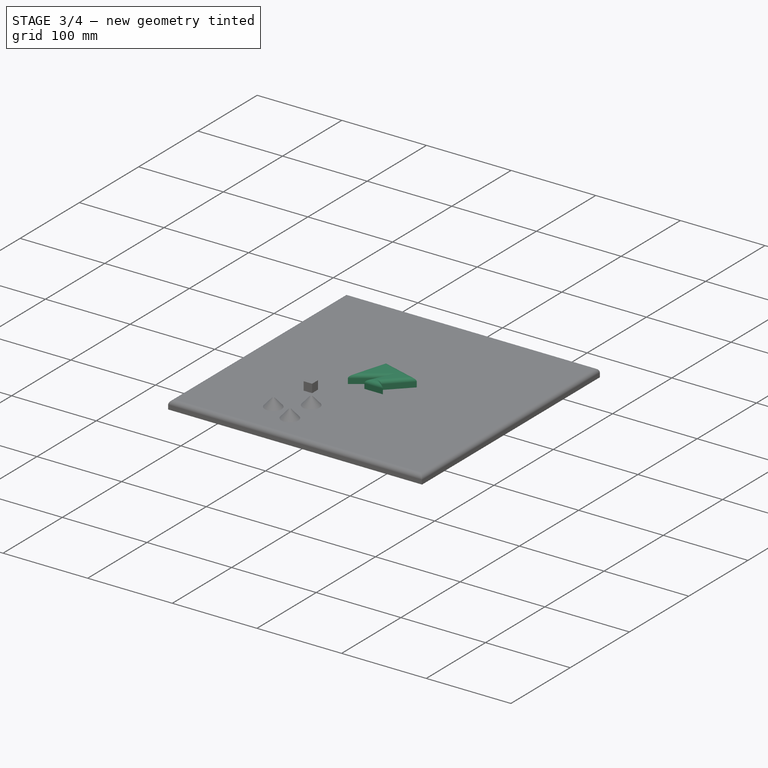
[diagram: stage 3 of 4 — iso view after this stage's code; geometry added in this stage tinted green]
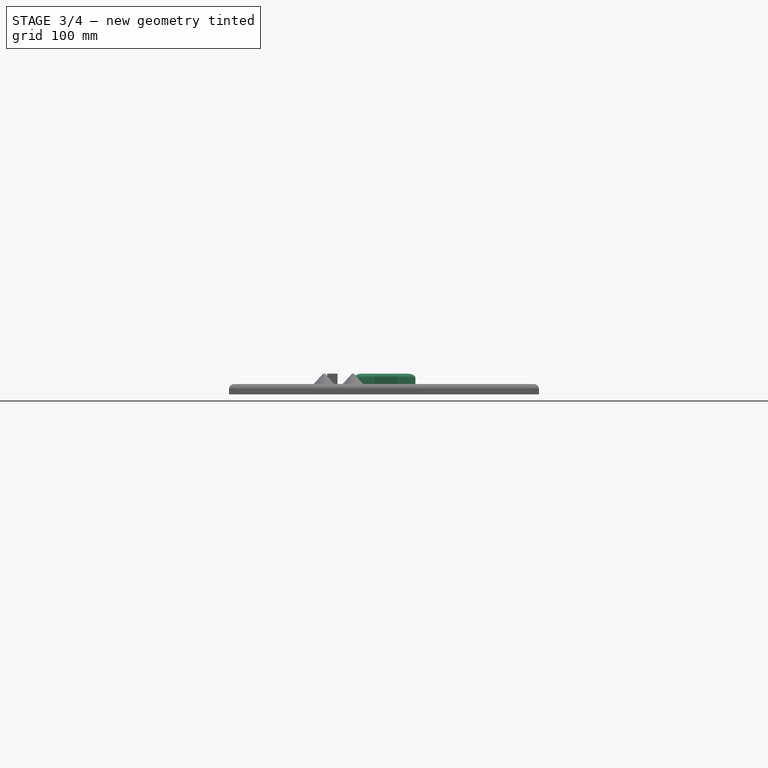
[diagram: stage 3 of 4 — front view after this stage's code; geometry added in this stage tinted green]
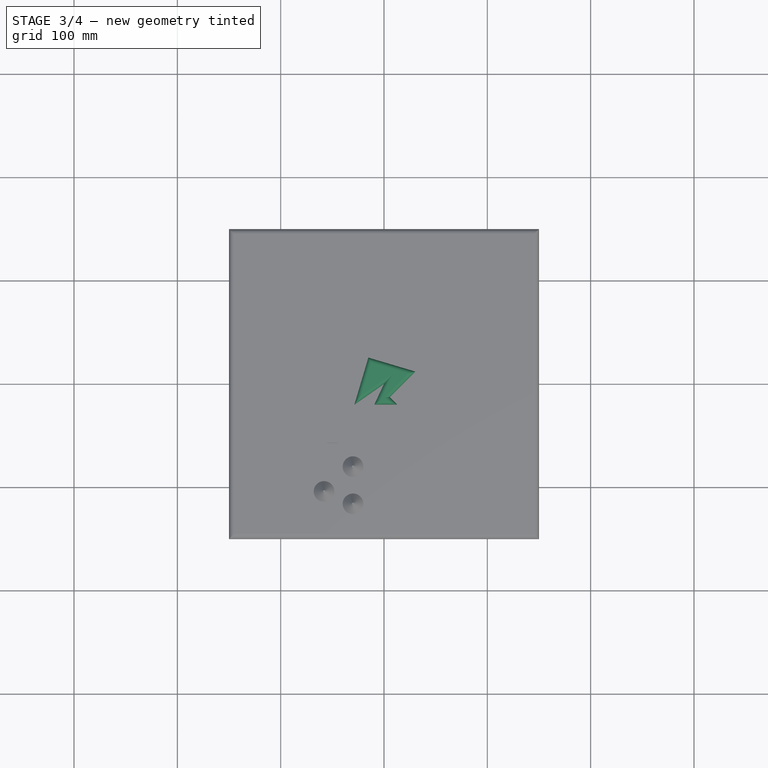
[diagram: stage 3 of 4 — top view after this stage's code; geometry added in this stage tinted green]
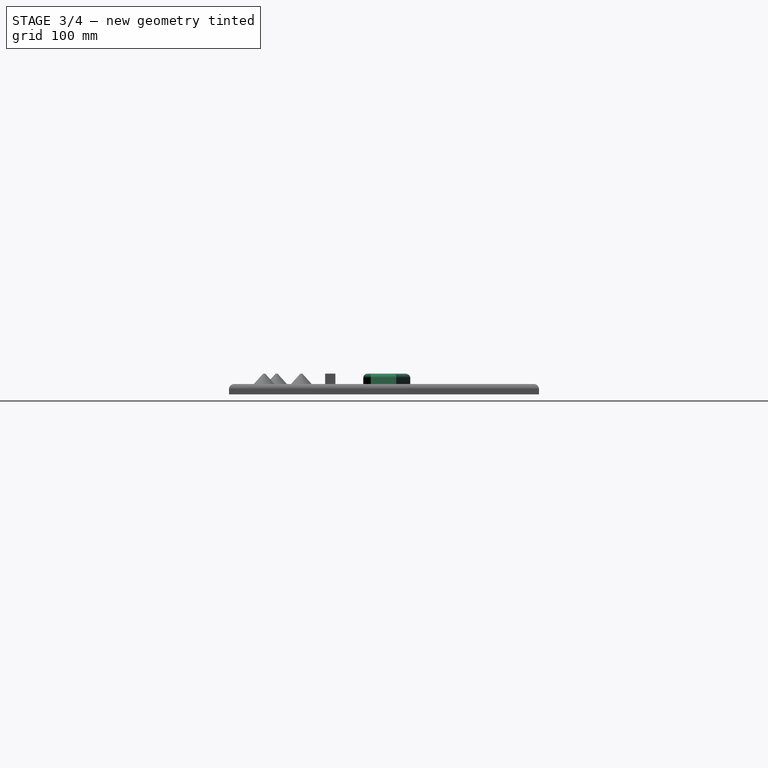
[diagram: stage 3 of 4 — right view after this stage's code; geometry added in this stage tinted green]
FEATURE [Sketcher::SketchObject] Sketch002
  MapMode = 5
  Support = -> [XY_Plane005]
  sketch-geometry (7):
    g0: LineSegment StartX=-15.1232 StartY=25.4281 StartZ=0 EndX=-28.6703 EndY=-20.0752 EndZ=0
    g1: LineSegment StartX=-28.6703 StartY=-20.0752 StartZ=0 EndX=-3.6e-15 EndY=0 EndZ=0
    g2: LineSegment StartX=-3.6e-15 StartY=0 StartZ=0 EndX=-9.2976 EndY=-19.9388 EndZ=0
    g3: LineSegment StartX=-9.2976 StartY=-19.9388 StartZ=0 EndX=12.7024 EndY=-19.9388 EndZ=0
    g4: LineSegment StartX=12.7024 StartY=-19.9388 StartZ=0 EndX=5.63133 EndY=-12.8677 EndZ=0
    g5: LineSegment StartX=5.63133 StartY=-12.8677 StartZ=0 EndX=30.3801 EndY=11.881 EndZ=0
    g6: LineSegment StartX=30.3801 StartY=11.881 StartZ=0 EndX=-15.1232 EndY=25.4281 EndZ=0
  constraints (20):
    c: Coincident(g0,g1)
    c: Coincident(g1,g2)
    c: Coincident(g2,g3)
    c: Coincident(g3,g4)
    c: Coincident(g4,g5)
    c: Coincident(g5,g6)
    c: Coincident(g6,g0)
    c: Coincident(g1,g-1)
    c: Perpendicular(g5,g4)
    c: Perpendicular(g6,g0)
    c: Equal(g0,g6)
    c: Equal(g2,g3)
    c: Equal(g1,g5)
    c: Angle(g1,g2) = 0.523599
    c: Angle(g4,g3) = 0.785398
    c: Horizontal(g3)
    c: Distance(g4) = 10
    c: Distance(g1) = 35
    c: Angle(g3,g2) = 1.13446
    c: Distance(g2) = 22
FEATURE [PartDesign::Pad] Pad002
  Length = 10
  Length2 = 100
  Profile = -> Sketch002
  Type = 0
FEATURE [PartDesign::Fillet] Fillet002
  Base = -> Pad002 [Face9]
  BaseFeature = -> Pad002
  Radius = 4
FEATURE [PartDesign::Body] Body002  label="root_body"
  Group = -> [Sketch002,Pad002,Fillet002]
  Origin = -> Origin005
  Placement = pos=(0,-33,0) rot=(0,0,1;0rad)
  Tip = -> Fillet002
FEATURE [PartDesign::FeatureBase] Clone  label="cube_part_clone"
  BaseFeature = -> Box001
  Placement = pos=(-55,-57,0) rot=(0,0,1;0rad)
FEATURE [PartDesign::Body] Body  label="lamp_holder"
  Group = -> [Binder,Pad,Binder001,Pad001,Binder002,Pocket,Fillet,Fillet001]
  Origin = -> Origin001
  Tip = -> Fillet001
FEATURE [PartDesign::Pad] Pad002
  Length = 16
  Length2 = 100
  Placement = pos=(0,-5,0) rot=(0,0,1;0rad)
  Profile = -> Binder003 [Face1]
  Type = 0
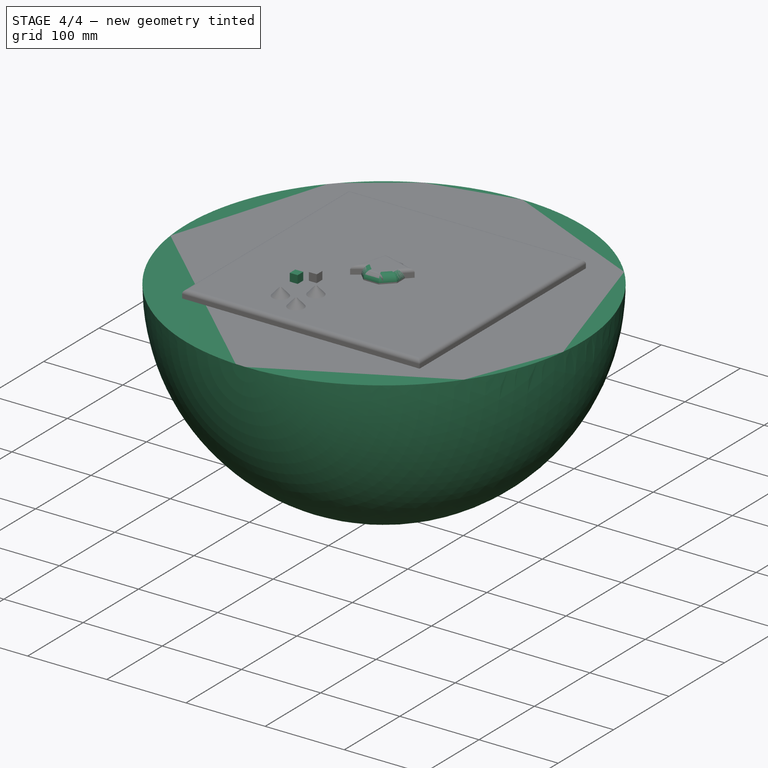
[diagram: stage 4 of 4 — iso view after this stage's code; geometry added in this stage tinted green]
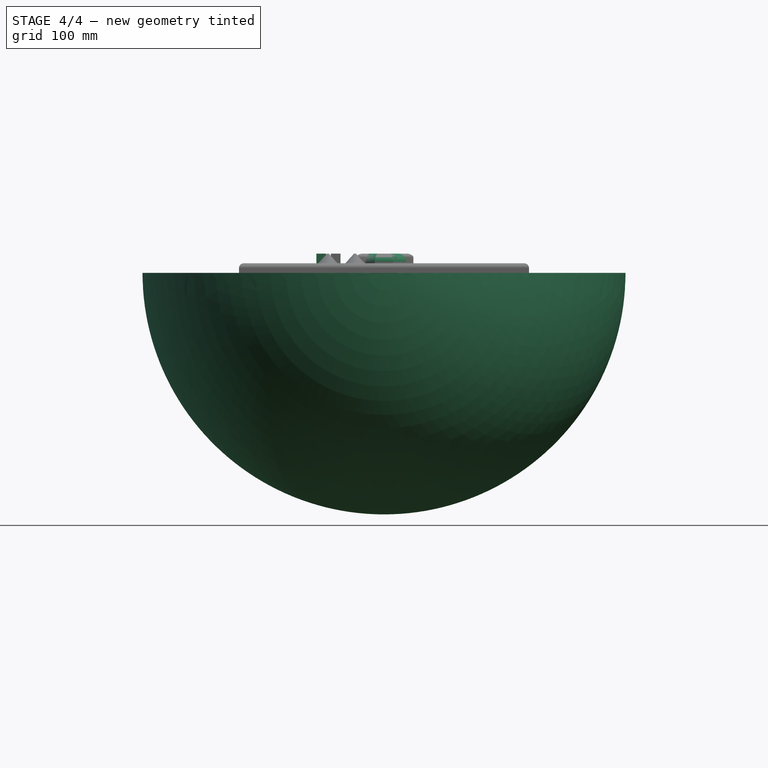
[diagram: stage 4 of 4 — front view after this stage's code; geometry added in this stage tinted green]
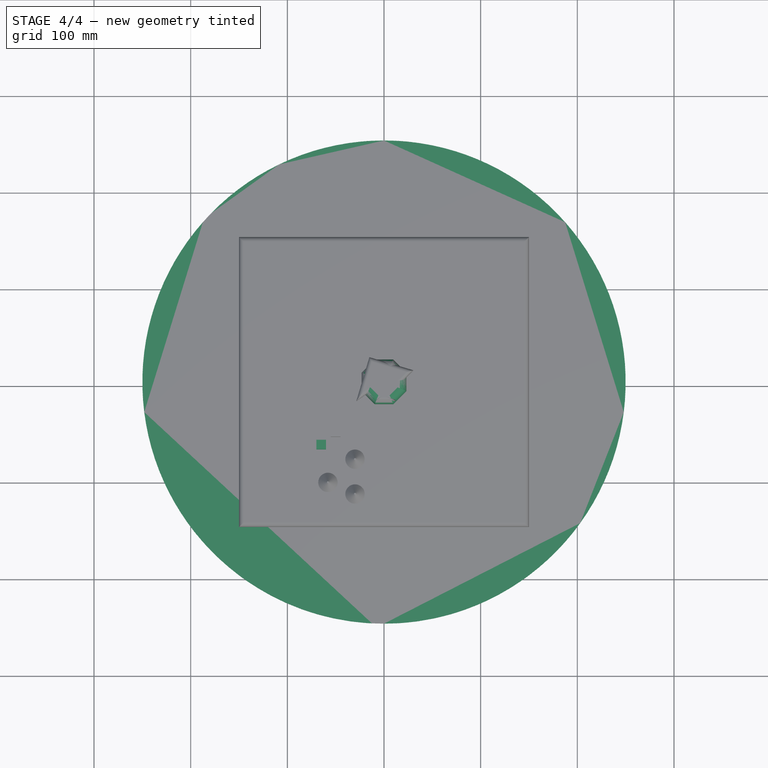
[diagram: stage 4 of 4 — top view after this stage's code; geometry added in this stage tinted green]
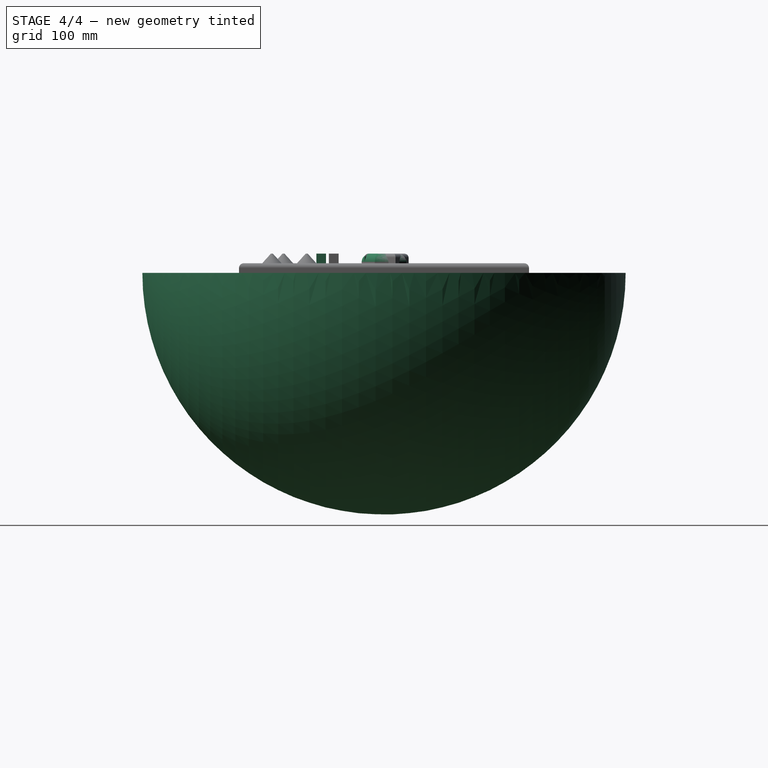
[diagram: stage 4 of 4 — right view after this stage's code; geometry added in this stage tinted green]
FEATURE [App::Link] Link001  label="front_panel_part"
  LinkedObject = -> <external front_panel.FCStd>#Part
FEATURE [App::LinkElement] Link_i0
  LinkPlacement = pos=(-40,0,105) rot=(0,0,1;0rad)
  LinkedObject = -> <external box_panel.FCStd>#Part
  Placement = pos=(-40,0,105) rot=(0,0,1;0rad)
  expr: .Placement.Base.z = <<base_dimensions>>#<<box_positions>>.Constraints.p1_z
  expr: .Placement.Base.x = <<base_dimensions>>#<<box_positions>>.Constraints.p1_x
FEATURE [App::LinkElement] Link_i1
  LinkPlacement = pos=(30,0,60) rot=(0,0,1;0rad)
  LinkedObject = -> <external box_panel.FCStd>#Part
  Placement = pos=(30,0,60) rot=(0,0,1;0rad)
  expr: .Placement.Base.z = <<base_dimensions>>#<<box_positions>>.Constraints.p2_z
  expr: .Placement.Base.x = <<base_dimensions>>#<<box_positions>>.Constraints.p2_x
FEATURE [App::Link] Link  label="box_panel_part"
  ElementCount = 2
  ElementList = -> [Link_i0,Link_i1]
  LinkedObject = -> <external box_panel.FCStd>#Part
FEATURE [App::Link] Link002  label="lamp_part"
  LinkedObject = -> <external lamp.FCStd>#Part
FEATURE [Sketcher::SketchObject] Sketch  label="floor_Sketch"
  MapMode = 5
  Support = -> [XY_Plane001]
  sketch-geometry (4):
    g0: LineSegment StartX=-150 StartY=150 StartZ=0 EndX=150 EndY=150 EndZ=0
    g1: LineSegment StartX=150 StartY=150 StartZ=0 EndX=150 EndY=-150 EndZ=0
    g2: LineSegment StartX=150 StartY=-150 StartZ=0 EndX=-150 EndY=-150 EndZ=0
    g3: LineSegment StartX=-150 StartY=-150 StartZ=0 EndX=-150 EndY=150 EndZ=0
  constraints (11):
    c: Coincident(g0,g1)
    c: Coincident(g1,g2)
    c: Coincident(g2,g3)
    c: Coincident(g3,g0)
    c: Horizontal(g0)
    c: Horizontal(g2)
    c: Vertical(g1)
    c: Vertical(g3)
    c: Symmetric(g0,g1,g-1)
    c: Equal(g0,g3)
    c: DistanceX(g2,g2) = 300
FEATURE [PartDesign::Pad] Pad  label="floor_Pad"
  Length = 10
  Length2 = 100
  Profile = -> Sketch
  Reversed = true
  Type = 0
FEATURE [Part::Box] Box  label="Cube_Hidden"
  AttacherType = Attacher::AttachEngine3D
  Height = 10
  Length = 10
  Placement = pos=(-70,-70,0) rot=(0,0,1;0rad)
  Width = 10
FEATURE [PartDesign::SubShapeBinder] Binder001  label="Binder_lamp_cutout_sketch"
  BindMode = 0
  ClaimChildren = false
  Context = -> Part [Body.Binder001.]
  Fuse = false
  MakeFace = true
  PartialLoad = false
  Relative = true
  Support = -> [<external base_dimensions.FCStd>#Part[Body002.Sketch007.]]
  _Version = 1
FEATURE [PartDesign::Pad] Pad001
  BaseFeature = -> Pad
  Length = 10
  Length2 = 100
  Profile = -> Binder001 [Face1]
  Type = 0
  expr: Length = <<base_dimensions>>#<<front_y>>.Constraints.thickness
FEATURE [PartDesign::SubShapeBinder] Binder002  label="Binder_lamp_cutout_in_sketch"
  BindMode = 0
  ClaimChildren = false
  Context = -> Part [Body.Binder002.]
  Fuse = false
  MakeFace = true
  PartialLoad = false
  Relative = true
  Support = -> [<external base_dimensions.FCStd>#Part[Body002.Sketch008.]]
  _Version = 1
FEATURE [PartDesign::Pocket] Pocket
  BaseFeature = -> Pad001
  Length = 5
  Length2 = 100
  Midplane = true
  Profile = -> Binder002 [Face1]
  Reversed = true
  Type = 1
FEATURE [PartDesign::Fillet] Fillet
  Base = -> Pocket [Edge3]
  BaseFeature = -> Pocket
  Radius = 5
  expr: Radius = <<base_dimensions>>#<<data>>.lamp_fillet_radius
FEATURE [PartDesign::AdditiveSphere] Sphere
  Angle1 = -90
  Angle2 = 90
  Angle3 = 180
  AttacherType = Attacher::AttachEngine3D
  AttachmentOffset = pos=(0,0,0) rot=(0,0,1;3.14159rad)
  BaseFeature = -> Pad002
  MapMode = 2
  Placement = pos=(0,-5,0) rot=(0,0,1;3.14159rad)
  Radius = 5
  Refine = true
  Support = -> [Binder003]
FEATURE [PartDesign::Body] Body001  label="lamp_glass"
  Group = -> [Binder003,Pad002,Sphere]
  Origin = -> Origin002
  Tip = -> Sphere
FEATURE [Part::Feature] Body__sc_export  label="lamp_holder__sc_export"
  shape: bbox 22.73 x 15.52 x 22.73 mm, 7 faces (baked)
FEATURE [Part::Feature] Body001__sc_export  label="lamp_glass__sc_export"
  shape: bbox 10 x 21 x 10 mm, 3 faces (baked)
FEATURE [App::Part] Part  label="lamp_part"
  Group = -> [Body,Body001,Body__sc_export,Body001__sc_export]
  Origin = -> Origin
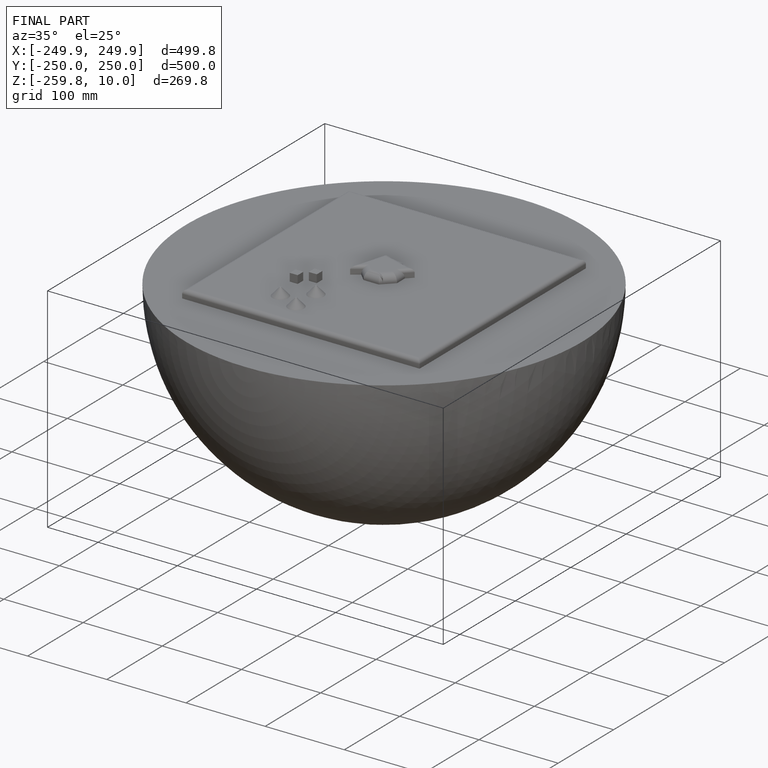
[diagram: finished part — iso view with bounding-box wireframe]
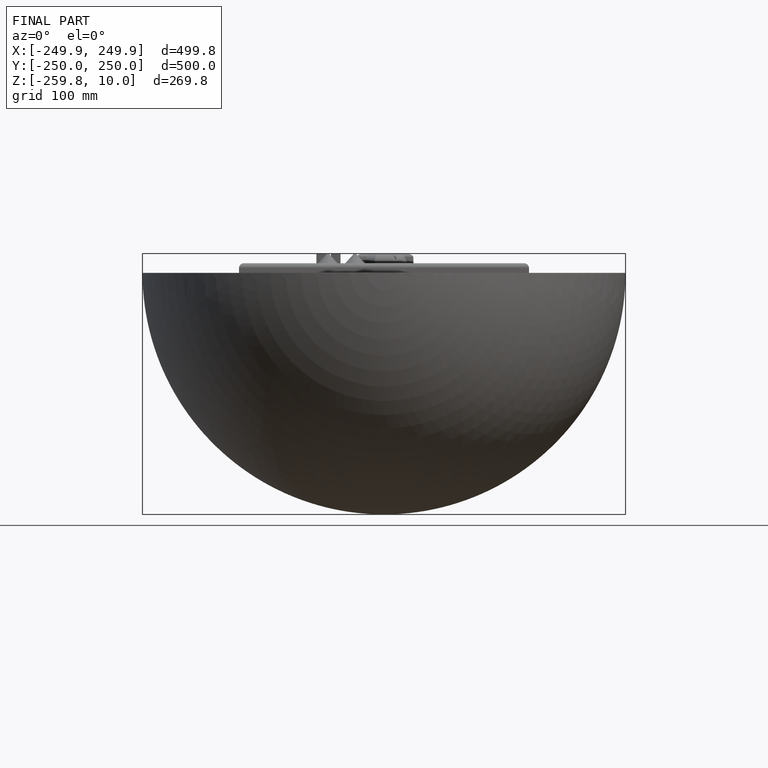
[diagram: finished part — front view with bounding-box wireframe]
